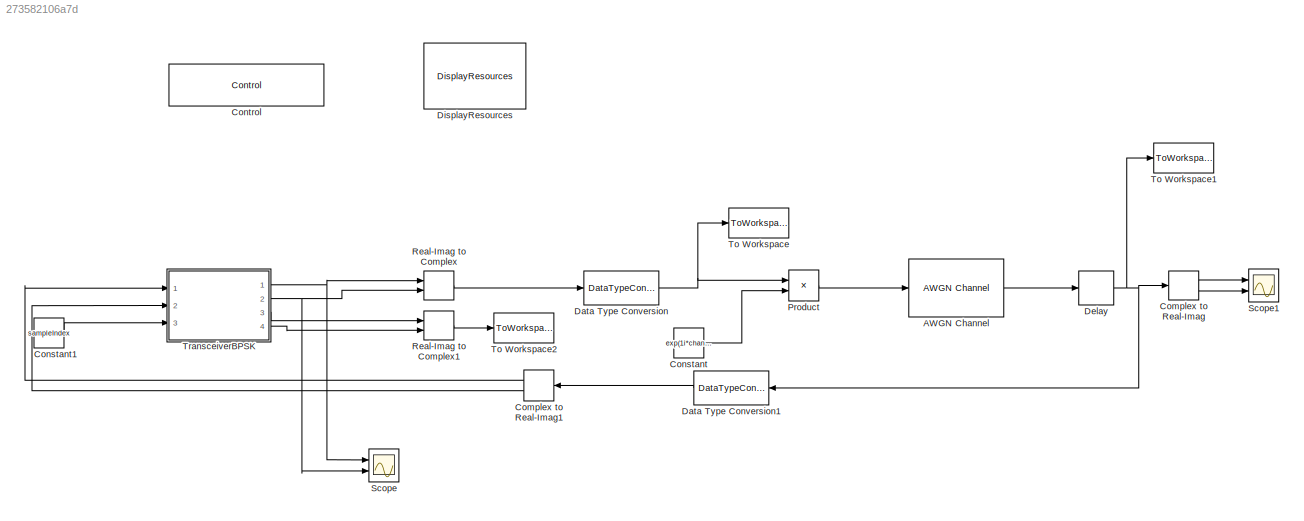
MODEL slx_273582106a7d
KIND model
CONFIG AbsTol = auto
CONFIG EnableMultiTasking = off
CONFIG FixedStep = stepSize
CONFIG InitFcn = MCC150_setup
CONFIG MaxStep = auto
CONFIG MinStep = auto
CONFIG RelTol = 1e-3
CONFIG SampleTimeConstraint = Unconstrained
CONFIG Solver = FixedStepAuto
CONFIG SolverName = FixedStepAuto
CONFIG StartTime = 0.0
CONFIG StopTime = stopTime
BLOCK [Reference] AWGN Channel  REF=commchan3/AWGN
Channel
  Ports = [1, 1]
  SourceBlock = commchan3/AWGN\nChannel
  SourceProductBaseCode = CM
  SourceProductName = Communications System Toolbox
  SourceType = AWGN Channel
  UserDataPersistent = on
BLOCK [ComplexToRealImag] Complex to Real-Imag
  Ports = [1, 2]
BLOCK [ComplexToRealImag] Complex to Real-Imag1
  Ports = [1, 2]
BLOCK [Constant] Constant
  Value = exp(1i*chan.phase)
BLOCK [Constant] Constant1
  OutDataTypeStr = fixdt(false, ceil(log2(sampleRate/dataRate)))
  OutMax = sampleRate/dataRate - 1
  OutMin = 0
  Value = sampleIndex
BLOCK [Reference] Control  REF=DSPBABase/Control
  Ports = []
  SourceBlock = DSPBABase/Control
  SourceType = DSP Builder Advanced Blockset Control Block
BLOCK [DataTypeConversion] Data Type Conversion
  OutDataTypeStr = double
  RndMeth = Floor
  SaturateOnIntegerOverflow = off
BLOCK [DataTypeConversion] Data Type Conversion1
  OutDataTypeStr = fixdt(true, wordLength)
  OutMax = 2^(wordLength-1)-1
  OutMin = -(2^(wordLength-1)-1)
  RndMeth = Floor
  SaturateOnIntegerOverflow = off
BLOCK [Delay] Delay
  DelayLength = chan.dly
  InputPortMap = u0
  Ports = [1, 1]
BLOCK [Reference] DisplayResources  REF=DSPBAUtilities/DisplayResources
  Ports = []
  SourceBlock = DSPBAUtilities/DisplayResources
BLOCK [Product] Product
  InputSameDT = off
  OutDataTypeStr = Inherit: Inherit via internal rule
  Ports = [2, 1]
  RndMeth = Floor
  SaturateOnIntegerOverflow = off
BLOCK [RealImagToComplex] Real-Imag to Complex
  Ports = [2, 1]
BLOCK [RealImagToComplex] Real-Imag to Complex1
  Ports = [2, 1]
BLOCK [Scope] Scope
  NumInputPorts = 2
  Ports = [2]
  ScopeSpecificationString = Simulink.scopes.TimeScopeBlockCfg('CurrentConfiguration', extmgr.ConfigurationSet(extmgr.Configuration('Core','General UI',true),extmgr.Configuration('Core','Source UI',true),extmgr.Configuration('Sources','WiredSimulink',true,'DataLoggingVariableName','ScopeData2'),extmgr.Configuration('Visuals','Time Domain',true,'SerializedDisplays',{struct('MinYLimReal','-1355.875','MaxYLimReal','1342.875','YL...<+1445ch>
BLOCK [Scope] Scope1
  NumInputPorts = 2
  Ports = [2]
  ScopeSpecificationString = Simulink.scopes.TimeScopeBlockCfg('CurrentConfiguration', extmgr.ConfigurationSet(extmgr.Configuration('Core','General UI',true),extmgr.Configuration('Core','Source UI',true),extmgr.Configuration('Sources','WiredSimulink',true,'DataLoggingVariableName','ScopeData3'),extmgr.Configuration('Visuals','Time Domain',true,'SerializedDisplays',{struct('MinYLimReal','-1269.22058','MaxYLimReal','1238.43103'...<+1459ch>
BLOCK [ToWorkspace] To Workspace
  FixptAsFi = on
  MaxDataPoints = inf
  Ports = [1]
  SampleTime = -1
  Save2DSignal = 3-D array (concatenate along third dimension)
  SaveFormat = Timeseries
  VariableName = txSave
BLOCK [ToWorkspace] To Workspace1
  FixptAsFi = on
  MaxDataPoints = inf
  Ports = [1]
  SampleTime = -1
  Save2DSignal = 3-D array (concatenate along third dimension)
  SaveFormat = Timeseries
  VariableName = rxSave
BLOCK [ToWorkspace] To Workspace2
  FixptAsFi = on
  MaxDataPoints = inf
  Ports = [1]
  SampleTime = -1
  Save2DSignal = 3-D array (concatenate along third dimension)
  SaveFormat = Timeseries
  VariableName = SymbSave
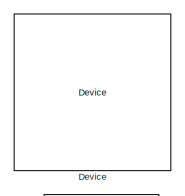
[diagram: TransceiverBPSK - part 1/2, top center region]
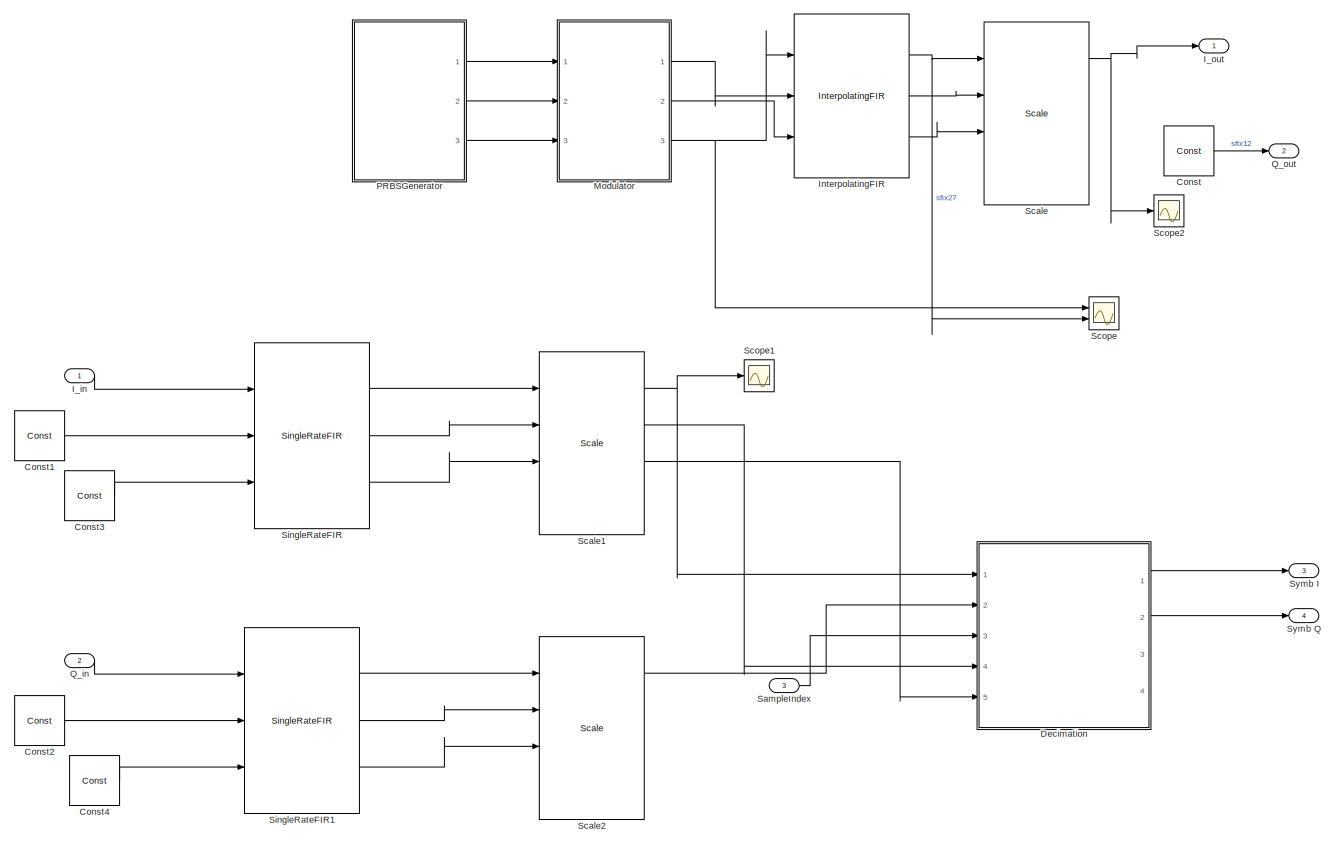
[diagram: TransceiverBPSK - part 2/2, most of the canvas]
BLOCK [SubSystem] TransceiverBPSK
  Ports = [3, 4]
  RequestExecContextInheritance = off
  Variant = off
BLOCK [Outport] TransceiverBPSK/ Symb I 
  IconDisplay = Port number
  Port = 3
BLOCK [Outport] TransceiverBPSK/ Symb Q
  IconDisplay = Port number
  Port = 4
BLOCK [Reference] TransceiverBPSK/Const  REF=DSPBAPrim/Const
  Ports = [0, 1]
  SourceBlock = DSPBAPrim/Const
  SourceType = DSP Builder Advanced Blockset primitive
BLOCK [Reference] TransceiverBPSK/Const1  REF=DSPBAPrim/Const
  Ports = [0, 1]
  SourceBlock = DSPBAPrim/Const
  SourceType = DSP Builder Advanced Blockset primitive
BLOCK [Reference] TransceiverBPSK/Const2  REF=DSPBAPrim/Const
  Ports = [0, 1]
  SourceBlock = DSPBAPrim/Const
  SourceType = DSP Builder Advanced Blockset primitive
BLOCK [Reference] TransceiverBPSK/Const3  REF=DSPBAPrim/Const
  Ports = [0, 1]
  SourceBlock = DSPBAPrim/Const
  SourceType = DSP Builder Advanced Blockset primitive
BLOCK [Reference] TransceiverBPSK/Const4  REF=DSPBAPrim/Const
  Ports = [0, 1]
  SourceBlock = DSPBAPrim/Const
  SourceType = DSP Builder Advanced Blockset primitive
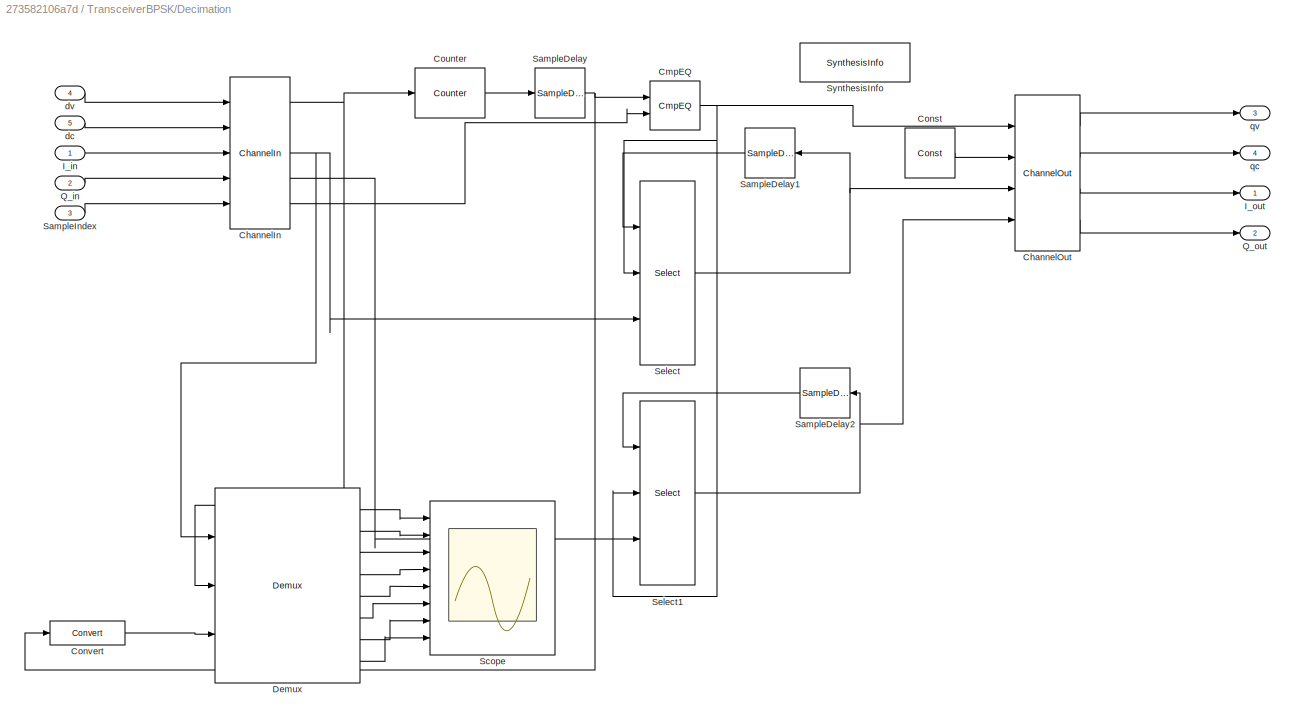
BLOCK [SubSystem] TransceiverBPSK/Decimation
  Ports = [5, 4]
  RequestExecContextInheritance = off
  Variant = off
BLOCK [Reference] TransceiverBPSK/Decimation/ChannelIn  REF=DSPBAPrim/ChannelIn
  Ports = [5, 5]
  SourceBlock = DSPBAPrim/ChannelIn
  SourceType = DSP Builder Advanced Blockset primitive
BLOCK [Reference] TransceiverBPSK/Decimation/ChannelOut  REF=DSPBAPrim/ChannelOut
  Ports = [4, 4]
  SourceBlock = DSPBAPrim/ChannelOut
  SourceType = DSP Builder Advanced Blockset primitive
BLOCK [Reference] TransceiverBPSK/Decimation/CmpEQ  REF=DSPBAPrim/CmpEQ
  Ports = [2, 1]
  SourceBlock = DSPBAPrim/CmpEQ
  SourceType = DSP Builder Advanced Blockset primitive
BLOCK [Reference] TransceiverBPSK/Decimation/Const  REF=DSPBAPrim/Const
  Ports = [0, 1]
  SourceBlock = DSPBAPrim/Const
  SourceType = DSP Builder Advanced Blockset primitive
BLOCK [Reference] TransceiverBPSK/Decimation/Convert  REF=DSPBAPrim/Convert
  Ports = [1, 1]
  SourceBlock = DSPBAPrim/Convert
  SourceType = DSP Builder Advanced Blockset primitive
BLOCK [Reference] TransceiverBPSK/Decimation/Counter  REF=DSPBAPrim/Counter
  Ports = [1, 1]
  SourceBlock = DSPBAPrim/Counter
  SourceType = DSP Builder Advanced Blockset primitive
BLOCK [Reference] TransceiverBPSK/Decimation/Demux  REF=DSPBAPrim/Demux
  Ports = [3, 8]
  SourceBlock = DSPBAPrim/Demux
  SourceType = DSP Builder Advanced Blockset primitive
BLOCK [Inport] TransceiverBPSK/Decimation/I_in
  IconDisplay = Port number
BLOCK [Outport] TransceiverBPSK/Decimation/I_out
  IconDisplay = Port number
BLOCK [Inport] TransceiverBPSK/Decimation/Q_in
  IconDisplay = Port number
  Port = 2
BLOCK [Outport] TransceiverBPSK/Decimation/Q_out
  IconDisplay = Port number
  Port = 2
BLOCK [Reference] TransceiverBPSK/Decimation/SampleDelay  REF=DSPBAPrim/SampleDelay
  Ports = [1, 1]
  SourceBlock = DSPBAPrim/SampleDelay
  SourceType = DSP Builder Advanced Blockset primitive
BLOCK [Reference] TransceiverBPSK/Decimation/SampleDelay1  REF=DSPBAPrim/SampleDelay
  Ports = [1, 1]
  SourceBlock = DSPBAPrim/SampleDelay
  SourceType = DSP Builder Advanced Blockset primitive
BLOCK [Reference] TransceiverBPSK/Decimation/SampleDelay2  REF=DSPBAPrim/SampleDelay
  Ports = [1, 1]
  SourceBlock = DSPBAPrim/SampleDelay
  SourceType = DSP Builder Advanced Blockset primitive
BLOCK [Inport] TransceiverBPSK/Decimation/SampleIndex
  IconDisplay = Port number
  Port = 3
BLOCK [Scope] TransceiverBPSK/Decimation/Scope
  NumInputPorts = 8
  Ports = [8]
  ScopeSpecificationString = Simulink.scopes.TimeScopeBlockCfg('CurrentConfiguration', extmgr.ConfigurationSet(extmgr.Configuration('Core','General UI',true),extmgr.Configuration('Core','Source UI',true),extmgr.Configuration('Sources','WiredSimulink',true,'DataLoggingVariableName','ScopeData2'),extmgr.Configuration('Visuals','Time Domain',true,'SerializedDisplays',{struct('MinYLimReal','-1237.375','MaxYLimReal','1236.375','YL...<+6213ch>
BLOCK [Reference] TransceiverBPSK/Decimation/Select  REF=DSPBAPrim/Select
  Ports = [3, 1]
  SourceBlock = DSPBAPrim/Select
  SourceType = DSP Builder Advanced Blockset primitive
BLOCK [Reference] TransceiverBPSK/Decimation/Select1  REF=DSPBAPrim/Select
  Ports = [3, 1]
  SourceBlock = DSPBAPrim/Select
  SourceType = DSP Builder Advanced Blockset primitive
BLOCK [Reference] TransceiverBPSK/Decimation/SynthesisInfo  REF=DSPBAPrim/SynthesisInfo
  Ports = []
  SourceBlock = DSPBAPrim/SynthesisInfo
  SourceType = DSP Builder Advanced Blockset primitive
BLOCK [Inport] TransceiverBPSK/Decimation/dc
  IconDisplay = Port number
  Port = 5
BLOCK [Inport] TransceiverBPSK/Decimation/dv
  IconDisplay = Port number
  Port = 4
BLOCK [Outport] TransceiverBPSK/Decimation/qc
  IconDisplay = Port number
  Port = 4
BLOCK [Outport] TransceiverBPSK/Decimation/qv
  IconDisplay = Port number
  Port = 3
BLOCK [Reference] TransceiverBPSK/Device  REF=DSPBABase/Device
  Ports = []
  SourceBlock = DSPBABase/Device
  SourceType = DSP Builder Advanced Blockset Device Block
BLOCK [Inport] TransceiverBPSK/I_in 
  IconDisplay = Port number
BLOCK [Outport] TransceiverBPSK/I_out
  IconDisplay = Port number
BLOCK [Reference] TransceiverBPSK/InterpolatingFIR  REF=DSPBAFilters/InterpolatingFIR
  Ports = [3, 3]
  SourceBlock = DSPBAFilters/InterpolatingFIR
  SourceType = DSP Builder Advanced Blockset Interpolating FIR
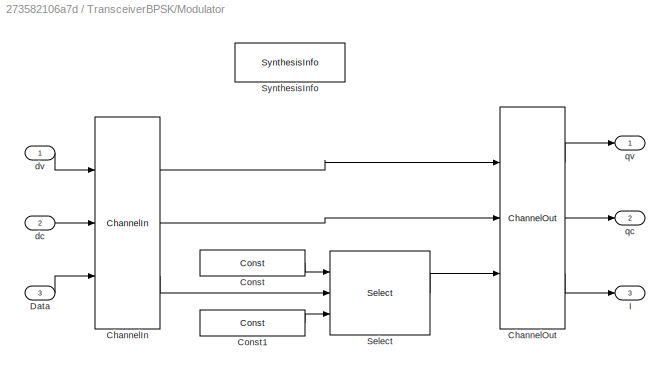
BLOCK [SubSystem] TransceiverBPSK/Modulator
  Ports = [3, 3]
  RequestExecContextInheritance = off
  Variant = off
BLOCK [Reference] TransceiverBPSK/Modulator/ChannelIn  REF=DSPBAPrim/ChannelIn
  Ports = [3, 3]
  SourceBlock = DSPBAPrim/ChannelIn
  SourceType = DSP Builder Advanced Blockset primitive
BLOCK [Reference] TransceiverBPSK/Modulator/ChannelOut  REF=DSPBAPrim/ChannelOut
  Ports = [3, 3]
  SourceBlock = DSPBAPrim/ChannelOut
  SourceType = DSP Builder Advanced Blockset primitive
BLOCK [Reference] TransceiverBPSK/Modulator/Const  REF=DSPBAPrim/Const
  Ports = [0, 1]
  SourceBlock = DSPBAPrim/Const
  SourceType = DSP Builder Advanced Blockset primitive
BLOCK [Reference] TransceiverBPSK/Modulator/Const1  REF=DSPBAPrim/Const
  Ports = [0, 1]
  SourceBlock = DSPBAPrim/Const
  SourceType = DSP Builder Advanced Blockset primitive
BLOCK [Inport] TransceiverBPSK/Modulator/Data
  IconDisplay = Port number
  Port = 3
BLOCK [Outport] TransceiverBPSK/Modulator/I
  IconDisplay = Port number
  Port = 3
BLOCK [Reference] TransceiverBPSK/Modulator/Select  REF=DSPBAPrim/Select
  Ports = [3, 1]
  SourceBlock = DSPBAPrim/Select
  SourceType = DSP Builder Advanced Blockset primitive
BLOCK [Reference] TransceiverBPSK/Modulator/SynthesisInfo  REF=DSPBAPrim/SynthesisInfo
  Ports = []
  SourceBlock = DSPBAPrim/SynthesisInfo
  SourceType = DSP Builder Advanced Blockset primitive
BLOCK [Inport] TransceiverBPSK/Modulator/dc
  IconDisplay = Port number
  Port = 2
BLOCK [Inport] TransceiverBPSK/Modulator/dv 
  IconDisplay = Port number
BLOCK [Outport] TransceiverBPSK/Modulator/qc
  IconDisplay = Port number
  Port = 2
BLOCK [Outport] TransceiverBPSK/Modulator/qv
  IconDisplay = Port number
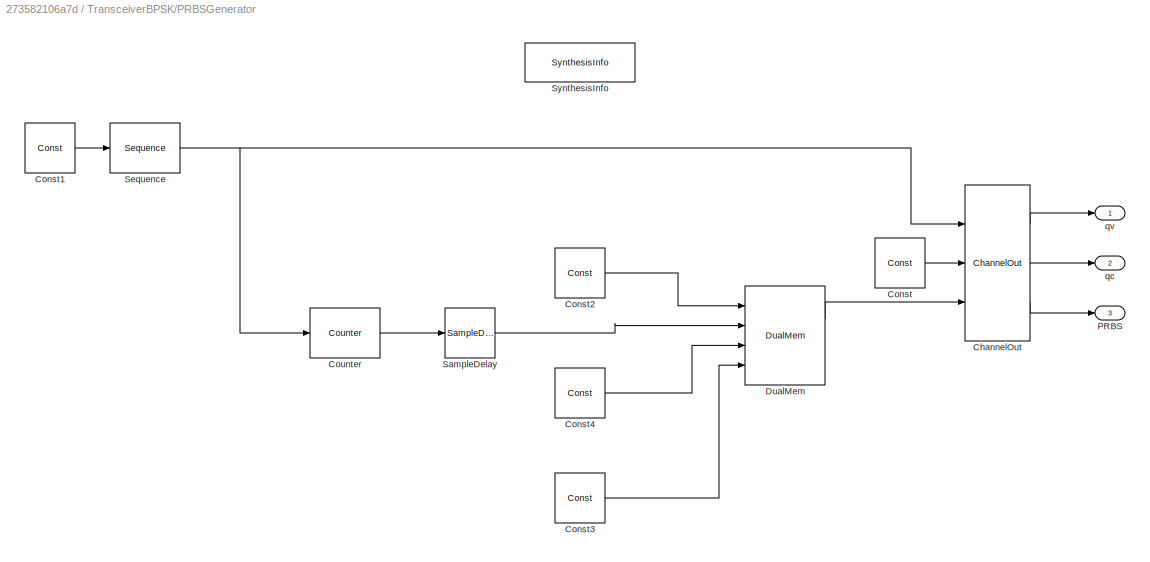
BLOCK [SubSystem] TransceiverBPSK/PRBSGenerator
  Ports = [0, 3]
  RequestExecContextInheritance = off
  Variant = off
BLOCK [Reference] TransceiverBPSK/PRBSGenerator/ChannelOut  REF=DSPBAPrim/ChannelOut
  Ports = [3, 3]
  SourceBlock = DSPBAPrim/ChannelOut
  SourceType = DSP Builder Advanced Blockset primitive
BLOCK [Reference] TransceiverBPSK/PRBSGenerator/Const  REF=DSPBAPrim/Const
  Ports = [0, 1]
  SourceBlock = DSPBAPrim/Const
  SourceType = DSP Builder Advanced Blockset primitive
BLOCK [Reference] TransceiverBPSK/PRBSGenerator/Const1  REF=DSPBAPrim/Const
  Ports = [0, 1]
  SourceBlock = DSPBAPrim/Const
  SourceType = DSP Builder Advanced Blockset primitive
BLOCK [Reference] TransceiverBPSK/PRBSGenerator/Const2  REF=DSPBAPrim/Const
  Ports = [0, 1]
  SourceBlock = DSPBAPrim/Const
  SourceType = DSP Builder Advanced Blockset primitive
BLOCK [Reference] TransceiverBPSK/PRBSGenerator/Const3  REF=DSPBAPrim/Const
  Ports = [0, 1]
  SourceBlock = DSPBAPrim/Const
  SourceType = DSP Builder Advanced Blockset primitive
BLOCK [Reference] TransceiverBPSK/PRBSGenerator/Const4  REF=DSPBAPrim/Const
  Ports = [0, 1]
  SourceBlock = DSPBAPrim/Const
  SourceType = DSP Builder Advanced Blockset primitive
BLOCK [Reference] TransceiverBPSK/PRBSGenerator/Counter  REF=DSPBAPrim/Counter
  Ports = [1, 1]
  SourceBlock = DSPBAPrim/Counter
  SourceType = DSP Builder Advanced Blockset primitive
BLOCK [Reference] TransceiverBPSK/PRBSGenerator/DualMem  REF=DSPBAPrim/DualMem
  Ports = [4, 2]
  SourceBlock = DSPBAPrim/DualMem
  SourceType = DSP Builder Advanced Blockset primitive
BLOCK [Outport] TransceiverBPSK/PRBSGenerator/PRBS
  IconDisplay = Port number
  Port = 3
BLOCK [Reference] TransceiverBPSK/PRBSGenerator/SampleDelay  REF=DSPBAPrim/SampleDelay
  Ports = [1, 1]
  SourceBlock = DSPBAPrim/SampleDelay
  SourceType = DSP Builder Advanced Blockset primitive
BLOCK [Reference] TransceiverBPSK/PRBSGenerator/Sequence  REF=DSPBAPrim/Sequence
  Ports = [1, 1]
  SourceBlock = DSPBAPrim/Sequence
  SourceType = DSP Builder Advanced Blockset primitive
BLOCK [Reference] TransceiverBPSK/PRBSGenerator/SynthesisInfo  REF=DSPBAPrim/SynthesisInfo
  Ports = []
  SourceBlock = DSPBAPrim/SynthesisInfo
  SourceType = DSP Builder Advanced Blockset primitive
BLOCK [Outport] TransceiverBPSK/PRBSGenerator/qc
  IconDisplay = Port number
  Port = 2
BLOCK [Outport] TransceiverBPSK/PRBSGenerator/qv
  IconDisplay = Port number
BLOCK [Inport] TransceiverBPSK/Q_in
  IconDisplay = Port number
  Port = 2
BLOCK [Outport] TransceiverBPSK/Q_out
  IconDisplay = Port number
  Port = 2
BLOCK [Inport] TransceiverBPSK/SampleIndex
  IconDisplay = Port number
  Port = 3
BLOCK [Reference] TransceiverBPSK/Scale  REF=DSPBABase/Scale
  Ports = [4, 4]
  SourceBlock = DSPBABase/Scale
  SourceType = DSP Builder Advanced Blockset Scale
BLOCK [Reference] TransceiverBPSK/Scale1  REF=DSPBABase/Scale
  Ports = [4, 4]
  SourceBlock = DSPBABase/Scale
  SourceType = DSP Builder Advanced Blockset Scale
BLOCK [Reference] TransceiverBPSK/Scale2  REF=DSPBABase/Scale
  Ports = [4, 4]
  SourceBlock = DSPBABase/Scale
  SourceType = DSP Builder Advanced Blockset Scale
BLOCK [Scope] TransceiverBPSK/Scope
  NumInputPorts = 2
  Ports = [2]
  ScopeSpecificationString = Simulink.scopes.TimeScopeBlockCfg('CurrentConfiguration', extmgr.ConfigurationSet(extmgr.Configuration('Core','General UI',true),extmgr.Configuration('Core','Source UI',true),extmgr.Configuration('Sources','WiredSimulink',true),extmgr.Configuration('Visuals','Time Domain',true,'SerializedDisplays',{struct('MinYLimReal','-2558.75','MaxYLimReal','2558.75','YLabelReal','','MinYLimMag','  0.00000','Ma...<+2294ch>
BLOCK [Scope] TransceiverBPSK/Scope1
  NumInputPorts = 1
  Ports = [1]
  ScopeSpecificationString = Simulink.scopes.TimeScopeBlockCfg('CurrentConfiguration', extmgr.ConfigurationSet(extmgr.Configuration('Core','General UI',true),extmgr.Configuration('Core','Source UI',true),extmgr.Configuration('Sources','WiredSimulink',true,'DataLoggingVariableName','ScopeData1'),extmgr.Configuration('Visuals','Time Domain',true,'SerializedDisplays',{struct('MinYLimReal','-1275.125','MaxYLimReal','1266.125','YL...<+1377ch>
BLOCK [Scope] TransceiverBPSK/Scope2
  NumInputPorts = 1
  Ports = [1]
  ScopeSpecificationString = Simulink.scopes.TimeScopeBlockCfg('CurrentConfiguration', extmgr.ConfigurationSet(extmgr.Configuration('Core','General UI',true),extmgr.Configuration('Core','Source UI',true),extmgr.Configuration('Sources','WiredSimulink',true,'DataLoggingVariableName','ScopeData1'),extmgr.Configuration('Visuals','Time Domain',true,'SerializedDisplays',{struct('MinYLimReal','-1355.875','MaxYLimReal','1342.875','YL...<+1376ch>
BLOCK [Reference] TransceiverBPSK/SingleRateFIR  REF=DSPBAFilters/SingleRateFIR
  Ports = [3, 3]
  SourceBlock = DSPBAFilters/SingleRateFIR
  SourceType = DSP Builder Advanced Blockset Single Rate FIR
BLOCK [Reference] TransceiverBPSK/SingleRateFIR1  REF=DSPBAFilters/SingleRateFIR
  Ports = [3, 3]
  SourceBlock = DSPBAFilters/SingleRateFIR
  SourceType = DSP Builder Advanced Blockset Single Rate FIR
LINE AWGN Channel:1 -> Delay:1
LINE Complex to Real-Imag1:1 -> TransceiverBPSK:1
LINE Complex to Real-Imag1:2 -> TransceiverBPSK:2
LINE Complex to Real-Imag:1 -> Scope1:1
LINE Complex to Real-Imag:2 -> Scope1:2
LINE Constant1:1 -> TransceiverBPSK:3
LINE Constant:1 -> Product:2
LINE Data Type Conversion1:1 -> Complex to Real-Imag1:1
NET Data Type Conversion:1 -> Product:1, To Workspace:1
NET Delay:1 -> Complex to Real-Imag:1, Data Type Conversion1:1, To Workspace1:1
LINE Product:1 -> AWGN Channel:1
LINE Real-Imag to Complex1:1 -> To Workspace2:1
LINE Real-Imag to Complex:1 -> Data Type Conversion:1
LINE TransceiverBPSK/Const1:1 -> TransceiverBPSK/SingleRateFIR:2
LINE TransceiverBPSK/Const2:1 -> TransceiverBPSK/SingleRateFIR1:2
LINE TransceiverBPSK/Const3:1 -> TransceiverBPSK/SingleRateFIR:3
LINE TransceiverBPSK/Const4:1 -> TransceiverBPSK/SingleRateFIR1:3
LINE TransceiverBPSK/Const:1 -> TransceiverBPSK/Q_out:1
NET TransceiverBPSK/Decimation/ChannelIn:1 -> TransceiverBPSK/Decimation/Counter:1, TransceiverBPSK/Decimation/Demux:2
NET TransceiverBPSK/Decimation/ChannelIn:3 -> TransceiverBPSK/Decimation/Demux:1, TransceiverBPSK/Decimation/Select:3
LINE TransceiverBPSK/Decimation/ChannelIn:4 -> TransceiverBPSK/Decimation/Select1:3
LINE TransceiverBPSK/Decimation/ChannelIn:5 -> TransceiverBPSK/Decimation/CmpEQ:2
LINE TransceiverBPSK/Decimation/ChannelOut:1 -> TransceiverBPSK/Decimation/qv:1
LINE TransceiverBPSK/Decimation/ChannelOut:2 -> TransceiverBPSK/Decimation/qc:1
LINE TransceiverBPSK/Decimation/ChannelOut:3 -> TransceiverBPSK/Decimation/I_out:1
LINE TransceiverBPSK/Decimation/ChannelOut:4 -> TransceiverBPSK/Decimation/Q_out:1
NET TransceiverBPSK/Decimation/CmpEQ:1 -> TransceiverBPSK/Decimation/ChannelOut:1, TransceiverBPSK/Decimation/Select1:2, TransceiverBPSK/Decimation/Select:2
LINE TransceiverBPSK/Decimation/Const:1 -> TransceiverBPSK/Decimation/ChannelOut:2
LINE TransceiverBPSK/Decimation/Convert:1 -> TransceiverBPSK/Decimation/Demux:3
LINE TransceiverBPSK/Decimation/Counter:1 -> TransceiverBPSK/Decimation/SampleDelay:1
LINE TransceiverBPSK/Decimation/Demux:1 -> TransceiverBPSK/Decimation/Scope:1
LINE TransceiverBPSK/Decimation/Demux:2 -> TransceiverBPSK/Decimation/Scope:2
LINE TransceiverBPSK/Decimation/Demux:3 -> TransceiverBPSK/Decimation/Scope:3
LINE TransceiverBPSK/Decimation/Demux:4 -> TransceiverBPSK/Decimation/Scope:4
LINE TransceiverBPSK/Decimation/Demux:5 -> TransceiverBPSK/Decimation/Scope:5
LINE TransceiverBPSK/Decimation/Demux:6 -> TransceiverBPSK/Decimation/Scope:6
LINE TransceiverBPSK/Decimation/Demux:7 -> TransceiverBPSK/Decimation/Scope:7
LINE TransceiverBPSK/Decimation/Demux:8 -> TransceiverBPSK/Decimation/Scope:8
LINE TransceiverBPSK/Decimation/I_in:1 -> TransceiverBPSK/Decimation/ChannelIn:3
LINE TransceiverBPSK/Decimation/Q_in:1 -> TransceiverBPSK/Decimation/ChannelIn:4
LINE TransceiverBPSK/Decimation/SampleDelay1:1 -> TransceiverBPSK/Decimation/Select:1
LINE TransceiverBPSK/Decimation/SampleDelay2:1 -> TransceiverBPSK/Decimation/Select1:1
NET TransceiverBPSK/Decimation/SampleDelay:1 -> TransceiverBPSK/Decimation/CmpEQ:1, TransceiverBPSK/Decimation/Convert:1
LINE TransceiverBPSK/Decimation/SampleIndex:1 -> TransceiverBPSK/Decimation/ChannelIn:5
NET TransceiverBPSK/Decimation/Select1:1 -> TransceiverBPSK/Decimation/ChannelOut:4, TransceiverBPSK/Decimation/SampleDelay2:1
NET TransceiverBPSK/Decimation/Select:1 -> TransceiverBPSK/Decimation/ChannelOut:3, TransceiverBPSK/Decimation/SampleDelay1:1
LINE TransceiverBPSK/Decimation/dc:1 -> TransceiverBPSK/Decimation/ChannelIn:2
LINE TransceiverBPSK/Decimation/dv:1 -> TransceiverBPSK/Decimation/ChannelIn:1
LINE TransceiverBPSK/Decimation:1 -> TransceiverBPSK/ Symb I :1
LINE TransceiverBPSK/Decimation:2 -> TransceiverBPSK/ Symb Q:1
LINE TransceiverBPSK/I_in :1 -> TransceiverBPSK/SingleRateFIR:1
NET TransceiverBPSK/InterpolatingFIR:1 -> TransceiverBPSK/Scale:1, TransceiverBPSK/Scope:2
LINE TransceiverBPSK/InterpolatingFIR:2 -> TransceiverBPSK/Scale:2
LINE TransceiverBPSK/InterpolatingFIR:3 -> TransceiverBPSK/Scale:3
LINE TransceiverBPSK/Modulator/ChannelIn:1 -> TransceiverBPSK/Modulator/ChannelOut:1
LINE TransceiverBPSK/Modulator/ChannelIn:2 -> TransceiverBPSK/Modulator/ChannelOut:2
LINE TransceiverBPSK/Modulator/ChannelIn:3 -> TransceiverBPSK/Modulator/Select:2
LINE TransceiverBPSK/Modulator/ChannelOut:1 -> TransceiverBPSK/Modulator/qv:1
LINE TransceiverBPSK/Modulator/ChannelOut:2 -> TransceiverBPSK/Modulator/qc:1
LINE TransceiverBPSK/Modulator/ChannelOut:3 -> TransceiverBPSK/Modulator/I:1
LINE TransceiverBPSK/Modulator/Const1:1 -> TransceiverBPSK/Modulator/Select:3
LINE TransceiverBPSK/Modulator/Const:1 -> TransceiverBPSK/Modulator/Select:1
LINE TransceiverBPSK/Modulator/Data:1 -> TransceiverBPSK/Modulator/ChannelIn:3
LINE TransceiverBPSK/Modulator/Select:1 -> TransceiverBPSK/Modulator/ChannelOut:3
LINE TransceiverBPSK/Modulator/dc:1 -> TransceiverBPSK/Modulator/ChannelIn:2
LINE TransceiverBPSK/Modulator/dv :1 -> TransceiverBPSK/Modulator/ChannelIn:1
LINE TransceiverBPSK/Modulator:1 -> TransceiverBPSK/InterpolatingFIR:2
LINE TransceiverBPSK/Modulator:2 -> TransceiverBPSK/InterpolatingFIR:3
NET TransceiverBPSK/Modulator:3 -> TransceiverBPSK/InterpolatingFIR:1, TransceiverBPSK/Scope:1
LINE TransceiverBPSK/PRBSGenerator/ChannelOut:1 -> TransceiverBPSK/PRBSGenerator/qv:1
LINE TransceiverBPSK/PRBSGenerator/ChannelOut:2 -> TransceiverBPSK/PRBSGenerator/qc:1
LINE TransceiverBPSK/PRBSGenerator/ChannelOut:3 -> TransceiverBPSK/PRBSGenerator/PRBS:1
LINE TransceiverBPSK/PRBSGenerator/Const1:1 -> TransceiverBPSK/PRBSGenerator/Sequence:1
LINE TransceiverBPSK/PRBSGenerator/Const2:1 -> TransceiverBPSK/PRBSGenerator/DualMem:1
LINE TransceiverBPSK/PRBSGenerator/Const3:1 -> TransceiverBPSK/PRBSGenerator/DualMem:4
LINE TransceiverBPSK/PRBSGenerator/Const4:1 -> TransceiverBPSK/PRBSGenerator/DualMem:3
LINE TransceiverBPSK/PRBSGenerator/Const:1 -> TransceiverBPSK/PRBSGenerator/ChannelOut:2
LINE TransceiverBPSK/PRBSGenerator/Counter:1 -> TransceiverBPSK/PRBSGenerator/SampleDelay:1
LINE TransceiverBPSK/PRBSGenerator/DualMem:1 -> TransceiverBPSK/PRBSGenerator/ChannelOut:3
LINE TransceiverBPSK/PRBSGenerator/SampleDelay:1 -> TransceiverBPSK/PRBSGenerator/DualMem:2
NET TransceiverBPSK/PRBSGenerator/Sequence:1 -> TransceiverBPSK/PRBSGenerator/ChannelOut:1, TransceiverBPSK/PRBSGenerator/Counter:1
LINE TransceiverBPSK/PRBSGenerator:1 -> TransceiverBPSK/Modulator:1
LINE TransceiverBPSK/PRBSGenerator:2 -> TransceiverBPSK/Modulator:2
LINE TransceiverBPSK/PRBSGenerator:3 -> TransceiverBPSK/Modulator:3
LINE TransceiverBPSK/Q_in:1 -> TransceiverBPSK/SingleRateFIR1:1
LINE TransceiverBPSK/SampleIndex:1 -> TransceiverBPSK/Decimation:3
NET TransceiverBPSK/Scale1:1 -> TransceiverBPSK/Decimation:1, TransceiverBPSK/Scope1:1
LINE TransceiverBPSK/Scale1:2 -> TransceiverBPSK/Decimation:4
LINE TransceiverBPSK/Scale1:3 -> TransceiverBPSK/Decimation:5
LINE TransceiverBPSK/Scale2:1 -> TransceiverBPSK/Decimation:2
NET TransceiverBPSK/Scale:1 -> TransceiverBPSK/I_out:1, TransceiverBPSK/Scope2:1
LINE TransceiverBPSK/SingleRateFIR1:1 -> TransceiverBPSK/Scale2:1
LINE TransceiverBPSK/SingleRateFIR1:2 -> TransceiverBPSK/Scale2:2
LINE TransceiverBPSK/SingleRateFIR1:3 -> TransceiverBPSK/Scale2:3
LINE TransceiverBPSK/SingleRateFIR:1 -> TransceiverBPSK/Scale1:1
LINE TransceiverBPSK/SingleRateFIR:2 -> TransceiverBPSK/Scale1:2
LINE TransceiverBPSK/SingleRateFIR:3 -> TransceiverBPSK/Scale1:3
NET TransceiverBPSK:1 -> Real-Imag to Complex:1, Scope:1
NET TransceiverBPSK:2 -> Real-Imag to Complex:2, Scope:2
LINE TransceiverBPSK:3 -> Real-Imag to Complex1:1
LINE TransceiverBPSK:4 -> Real-Imag to Complex1:2
note: NET lines group one-source signal fan-out (src -> all destinations, sorted); 1:1 wires keep LINE
